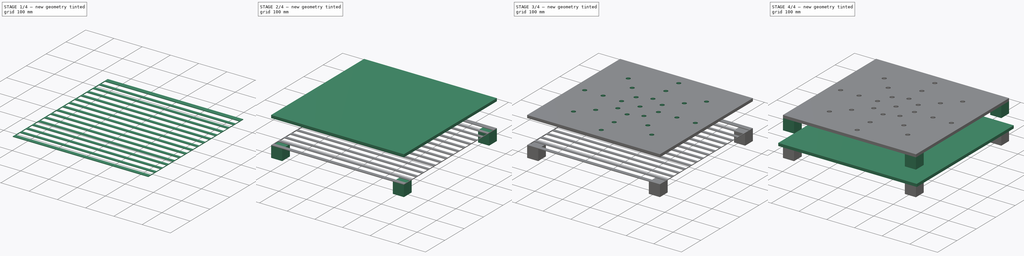
[diagram: build sequence overview — one tinted view per stage of 4, left to right]
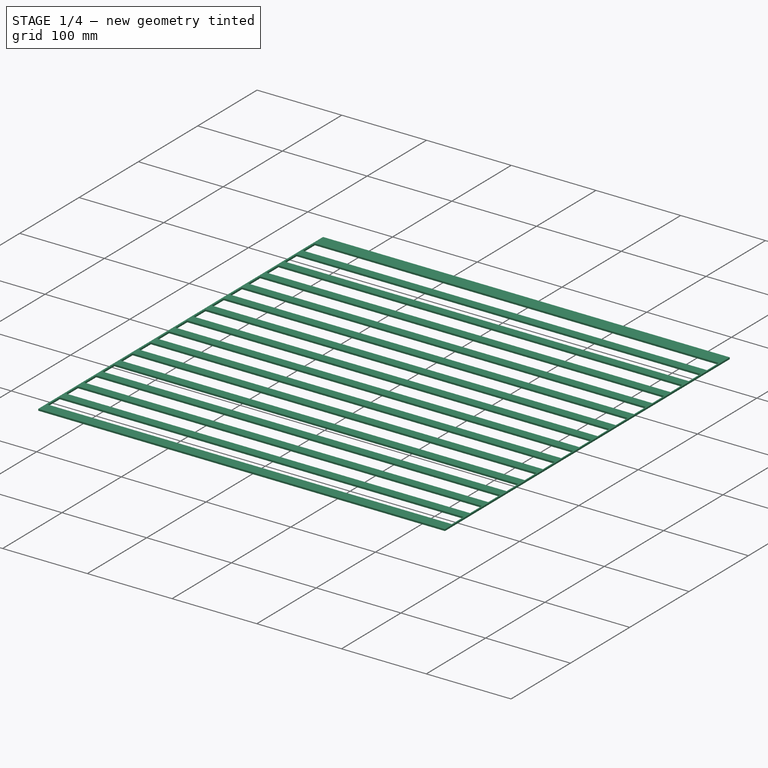
[diagram: stage 1 of 4 — iso view after this stage's code; geometry added in this stage tinted green]
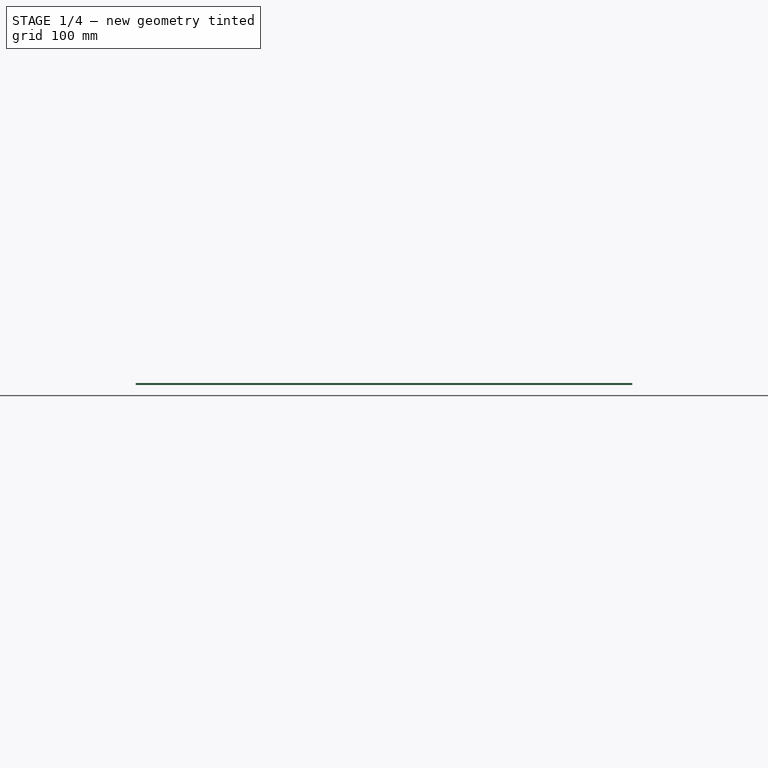
[diagram: stage 1 of 4 — front view after this stage's code; geometry added in this stage tinted green]
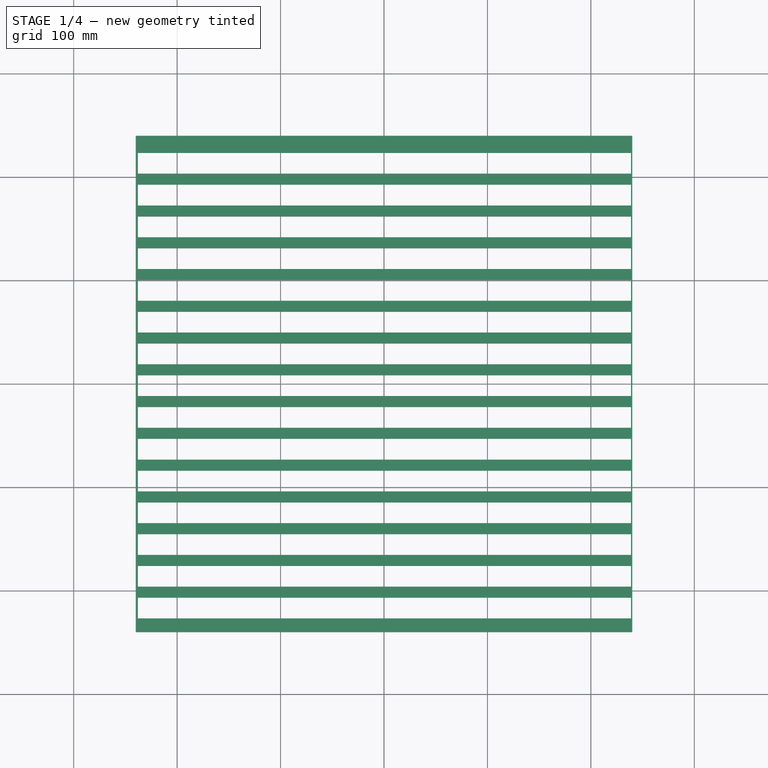
[diagram: stage 1 of 4 — top view after this stage's code; geometry added in this stage tinted green]
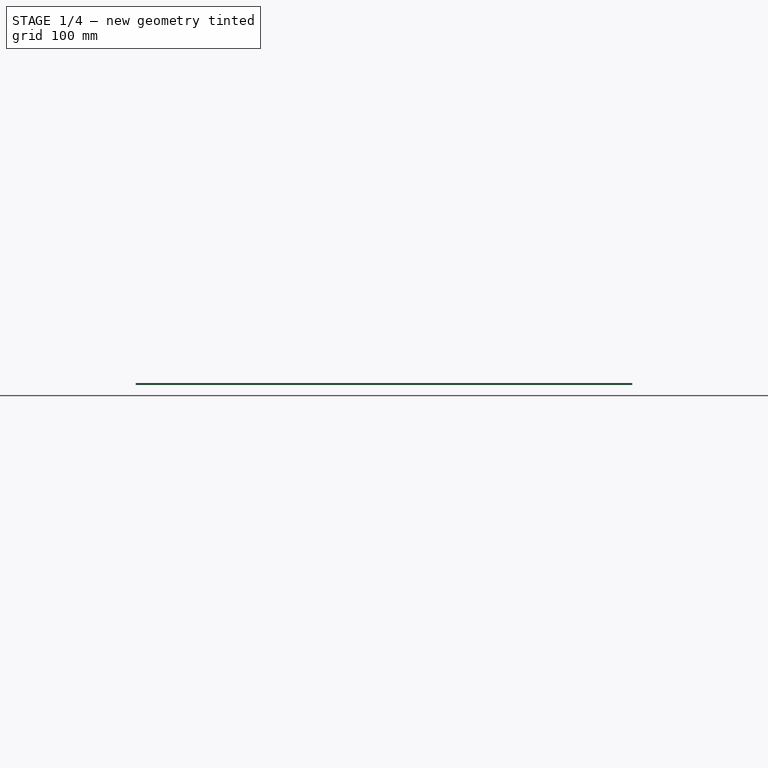
[diagram: stage 1 of 4 — right view after this stage's code; geometry added in this stage tinted green]
FCSTD DOCUMENT  (FreeCAD 0.18R16131 (Git))
Label: fumoir
License: All rights reserved
LicenseURL: http://en.wikipedia.org/wiki/All_rights_reserved
objects: Sketcher::SketchObject×9, PartDesign::Pad×6, PartDesign::PolarPattern×3, PartDesign::Body×3, PartDesign::Pocket×2, PartDesign::LinearPattern×2, PartDesign::MultiTransform×1, Part::Extrusion×1
note: 35 computed .brp shape members not serialized (recipe doc carries the construction recipe); baked Part::Feature solids carry a one-line shape summary decoded from their .brp

FEATURE [PartDesign::Body] Body002  label="Fermeture"
  Group = -> [Sketch003,Pad001,Sketch004,Pad002]
  Origin = -> Origin002
  Placement = pos=(0,0,500) rot=(0,0,1;0rad)
  Tip = -> Pad002
FEATURE [Sketcher::SketchObject] Sketch005
  MapMode = 5
  Support = -> [XY_Plane003]
  sketch-geometry (5):
    g0: LineSegment StartX=-240 StartY=240 StartZ=0 EndX=240 EndY=240 EndZ=0
    g1: LineSegment StartX=240 StartY=240 StartZ=0 EndX=240 EndY=-240 EndZ=0
    g2: LineSegment StartX=240 StartY=-240 StartZ=0 EndX=-240 EndY=-240 EndZ=0
    g3: LineSegment StartX=-240 StartY=-240 StartZ=0 EndX=-240 EndY=240 EndZ=0
    g4: LineSegment StartX=-212.012 StartY=-240 StartZ=0 EndX=-138.837 EndY=-240 EndZ=0
  constraints (12):
    c: Coincident(g0,g1)
    c: Coincident(g1,g2)
    c: Coincident(g2,g3)
    c: Coincident(g3,g0)
    c: Horizontal(g2)
    c: Vertical(g1)
    c: DistanceX(g0,g0) = 480
    c: DistanceY(g3,g3) = 480
    c: Symmetric(g0,g0,g-2)
    c: Symmetric(g0,g2,g-1)
    c: Horizontal(g4)
    c: PointOnObject(g4,g2)
FEATURE [PartDesign::Pad] Pad003
  Length = 2
  Length2 = 100
  Profile = -> Sketch005
  Type = 0
FEATURE [Sketcher::SketchObject] Sketch006
  ExternalGeometry = -> [Sketch005]
  MapMode = 5
  Support = -> [XY_Plane003]
  sketch-geometry (4):
    g0: LineSegment StartX=-237.974 StartY=223.337 StartZ=0 EndX=238.742 EndY=223.337 EndZ=0
    g1: LineSegment StartX=238.742 StartY=223.337 StartZ=0 EndX=238.742 EndY=203.337 EndZ=0
    g2: LineSegment StartX=238.742 StartY=203.337 StartZ=0 EndX=-237.974 EndY=203.337 EndZ=0
    g3: LineSegment StartX=-237.974 StartY=203.337 StartZ=0 EndX=-237.974 EndY=223.337 EndZ=0
  constraints (9):
    c: Coincident(g0,g1)
    c: Coincident(g1,g2)
    c: Coincident(g2,g3)
    c: Coincident(g3,g0)
    c: Horizontal(g0)
    c: Horizontal(g2)
    c: Vertical(g1)
    c: Vertical(g3)
    c: DistanceY(g1,g1) = 20
FEATURE [PartDesign::Pocket] Pocket002
  BaseFeature = -> Pad003
  Length = 5
  Length2 = 100
  Profile = -> Sketch006
  Reversed = true
  Type = 1
FEATURE [PartDesign::LinearPattern] LinearPattern001
  BaseFeature = -> Pocket002
  Direction = -> Sketch006 [V_Axis]
  Length = 430
  Occurrences = 15
  Originals = -> [Pocket002]
  Reversed = true
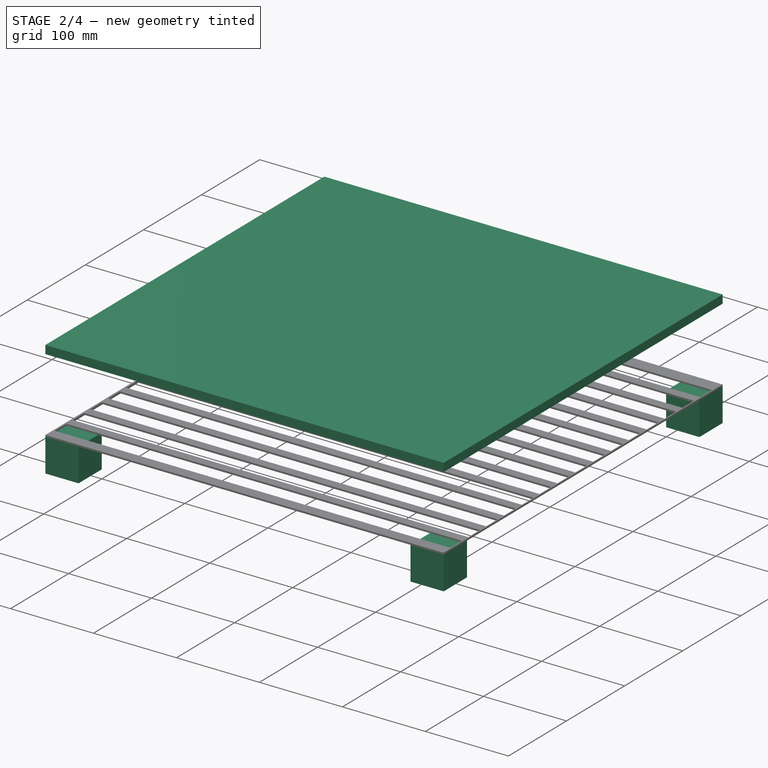
[diagram: stage 2 of 4 — iso view after this stage's code; geometry added in this stage tinted green]
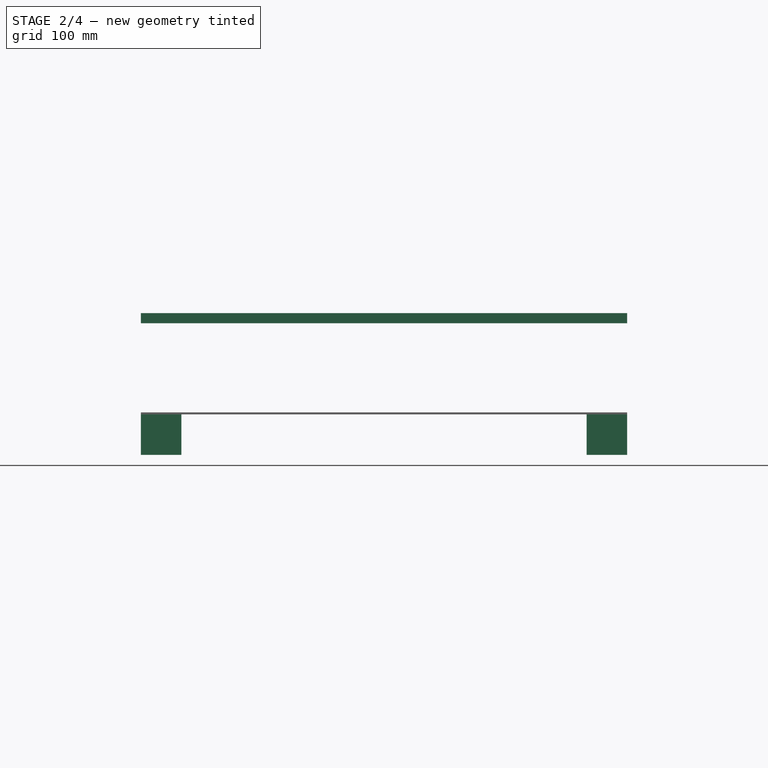
[diagram: stage 2 of 4 — front view after this stage's code; geometry added in this stage tinted green]
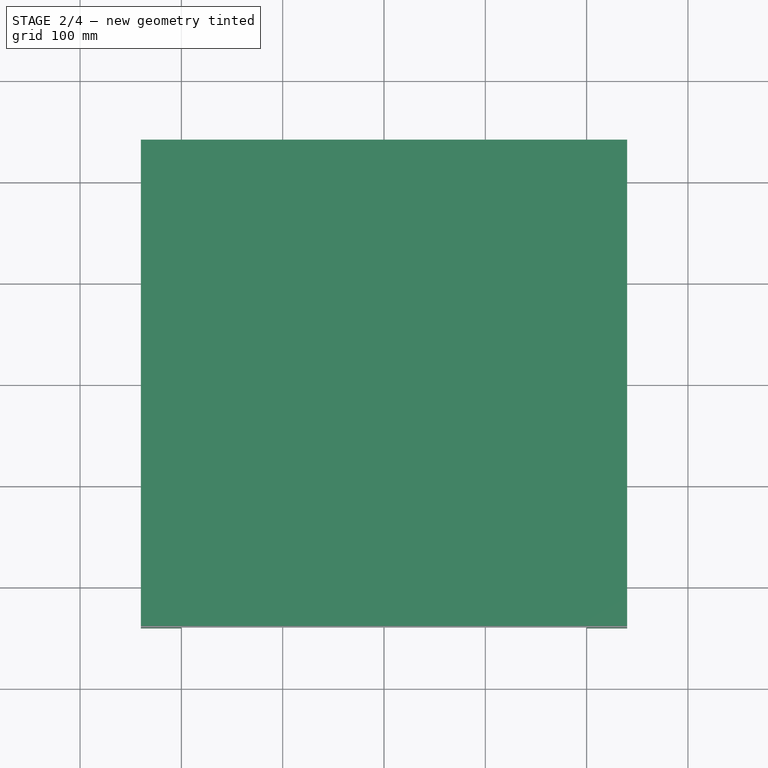
[diagram: stage 2 of 4 — top view after this stage's code; geometry added in this stage tinted green]
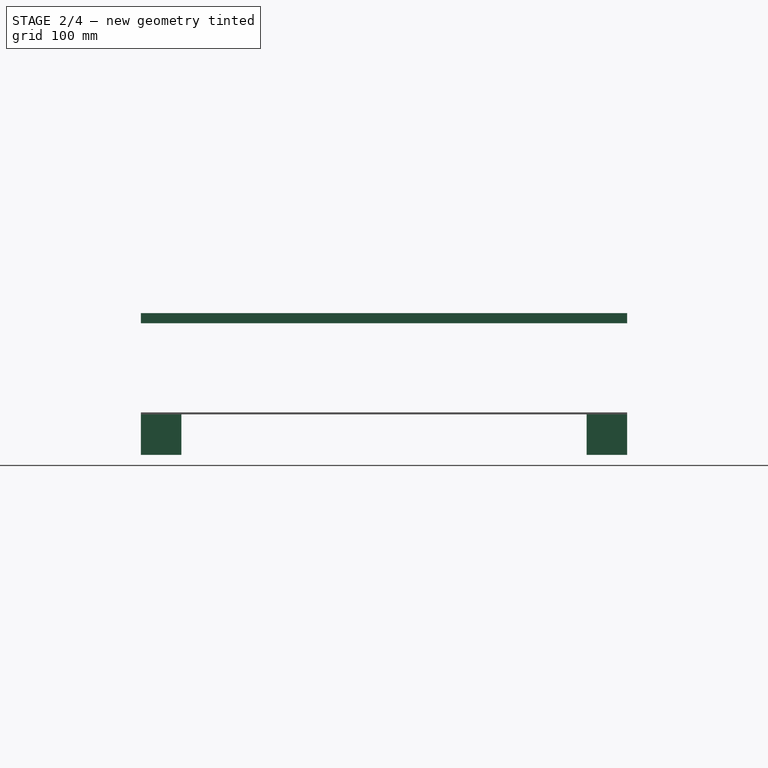
[diagram: stage 2 of 4 — right view after this stage's code; geometry added in this stage tinted green]
FEATURE [Sketcher::SketchObject] Sketch  label="cotes"
  MapMode = 5
  Support = -> [XY_Plane]
  sketch-geometry (16):
    g0: LineSegment StartX=-250 StartY=250 StartZ=0 EndX=-240 EndY=250 EndZ=0
    g1: LineSegment StartX=-240 StartY=250 StartZ=0 EndX=-240 EndY=-250 EndZ=0
    g2: LineSegment StartX=-240 StartY=-250 StartZ=0 EndX=-250 EndY=-250 EndZ=0
    g3: LineSegment StartX=-250 StartY=-250 StartZ=0 EndX=-250 EndY=250 EndZ=0
    g4: LineSegment StartX=-240 StartY=250 StartZ=0 EndX=250 EndY=250 EndZ=0
    g5: LineSegment StartX=250 StartY=250 StartZ=0 EndX=250 EndY=240 EndZ=0
    g6: LineSegment StartX=240 StartY=240 StartZ=0 EndX=-240 EndY=240 EndZ=0
    g7: LineSegment StartX=-240 StartY=240 StartZ=0 EndX=-240 EndY=250 EndZ=0
    g8: LineSegment StartX=250 StartY=250 StartZ=0 EndX=234.86 EndY=250 EndZ=0
    g9: LineSegment StartX=240 StartY=250 StartZ=0 EndX=240 EndY=-250 EndZ=0
    g10: LineSegment StartX=240 StartY=-250 StartZ=0 EndX=250 EndY=-250 EndZ=0
    g11: LineSegment StartX=250 StartY=-250 StartZ=0 EndX=250 EndY=250 EndZ=0
    g12: LineSegment StartX=-240 StartY=-250 StartZ=0 EndX=250 EndY=-250 EndZ=0
    g13: LineSegment StartX=250 StartY=-250 StartZ=0 EndX=250 EndY=-239.872 EndZ=0
    g14: LineSegment StartX=240 StartY=-240 StartZ=0 EndX=-240 EndY=-240 EndZ=0
    g15: LineSegment StartX=-240 StartY=-240 StartZ=0 EndX=-240 EndY=-250 EndZ=0
  constraints (41):
    c: Coincident(g0,g1)
    c: Coincident(g1,g2)
    c: Coincident(g2,g3)
    c: Coincident(g3,g0)
    c: Horizontal(g0)
    c: Horizontal(g2)
    c: Vertical(g1)
    c: Vertical(g3)
    c: Coincident(g4,g5)
    c: Coincident(g6,g7)
    c: Coincident(g7,g4)
    c: Horizontal(g6)
    c: Vertical(g5)
    c: Vertical(g7)
    c: Coincident(g4,g0)
    c: Coincident(g9,g10)
    c: Coincident(g10,g11)
    c: Coincident(g11,g8)
    c: Horizontal(g10)
    c: Vertical(g9)
    c: Coincident(g4,g8)
    c: Coincident(g12,g13)
    c: Coincident(g14,g15)
    c: Coincident(g15,g12)
    c: Horizontal(g12)
    c: Horizontal(g14)
    c: Vertical(g13)
    c: Vertical(g15)
    c: Coincident(g12,g1)
    c: DistanceY(g3,g3) = 500
    c: Coincident(g10,g12)
    c: DistanceX(g2,g2) = 10
    c: Equal(g10,g2)
    c: DistanceY(g1,g14) = 10
    c: Symmetric(g4,g10,g-1)
    c: PointOnObject(g14,g9)
    c: PointOnObject(g9,g4)
    c: PointOnObject(g6,g9)
    c: DistanceX(g0,g4) = 500
    c: Symmetric(g0,g4,g-2)
    c: DistanceY(g6,g9) = 10
FEATURE [Sketcher::SketchObject] Sketch001  label="dessous"
  AttachmentOffset = pos=(0,0,100) rot=(0,0,1;0rad)
  MapMode = 5
  Placement = pos=(0,0,100) rot=(0,0,1;0rad)
  Support = -> [XY_Plane]
  sketch-geometry (4):
    g0: LineSegment StartX=-240 StartY=240 StartZ=0 EndX=240 EndY=240 EndZ=0
    g1: LineSegment StartX=240 StartY=240 StartZ=0 EndX=240 EndY=-240 EndZ=0
    g2: LineSegment StartX=240 StartY=-240 StartZ=0 EndX=-240 EndY=-240 EndZ=0
    g3: LineSegment StartX=-240 StartY=-240 StartZ=0 EndX=-240 EndY=240 EndZ=0
  constraints (10):
    c: Coincident(g0,g1)
    c: Coincident(g1,g2)
    c: Coincident(g2,g3)
    c: Coincident(g3,g0)
    c: Horizontal(g2)
    c: Vertical(g1)
    c: DistanceX(g0,g0) = 480
    c: DistanceY(g3,g3) = 480
    c: Symmetric(g0,g0,g-2)
    c: Symmetric(g0,g2,g-1)
FEATURE [PartDesign::Pad] Pad
  Length = 10
  Length2 = 100
  Profile = -> Sketch001
  Reversed = true
  Type = 0
FEATURE [PartDesign::Body] Body  label="Separateur"
  Group = -> [Sketch,Sketch001,Pad,Sketch002,Pocket,MultiTransform,LinearPattern,PolarPattern,Sketch008,Pad004,PolarPattern001]
  Origin = -> Origin
  Tip = -> PolarPattern001
FEATURE [Sketcher::SketchObject] Sketch009
  ExternalGeometry = -> [Sketch005]
  MapMode = 5
  Support = -> [XY_Plane003]
  sketch-geometry (4):
    g0: LineSegment StartX=-240 StartY=240 StartZ=0 EndX=-200 EndY=240 EndZ=0
    g1: LineSegment StartX=-200 StartY=240 StartZ=0 EndX=-200 EndY=200 EndZ=0
    g2: LineSegment StartX=-200 StartY=200 StartZ=0 EndX=-240 EndY=200 EndZ=0
    g3: LineSegment StartX=-240 StartY=200 StartZ=0 EndX=-240 EndY=240 EndZ=0
  constraints (11):
    c: Coincident(g0,g1)
    c: Coincident(g1,g2)
    c: Coincident(g2,g3)
    c: Coincident(g3,g0)
    c: Horizontal(g0)
    c: Horizontal(g2)
    c: Vertical(g1)
    c: Vertical(g3)
    c: Coincident(g0,g-4)
    c: DistanceY(g1,g1) = 40
    c: DistanceX(g2,g2) = 40
FEATURE [PartDesign::Pad] Pad005
  BaseFeature = -> LinearPattern001
  Length = 40
  Length2 = 100
  Profile = -> Sketch009
  Reversed = true
  Type = 0
FEATURE [PartDesign::PolarPattern] PolarPattern002
  Angle = 360
  Axis = -> Sketch009 [N_Axis]
  BaseFeature = -> Pad005
  Occurrences = 4
  Originals = -> [Pad005]
FEATURE [PartDesign::Body] Body003  label="Grille"
  Group = -> [Sketch005,Pad003,Sketch006,Pocket002,LinearPattern001,Sketch009,Pad005,PolarPattern002]
  Origin = -> Origin003
  Placement = pos=(0,0,400) rot=(0,0,1;0rad)
  Tip = -> PolarPattern002
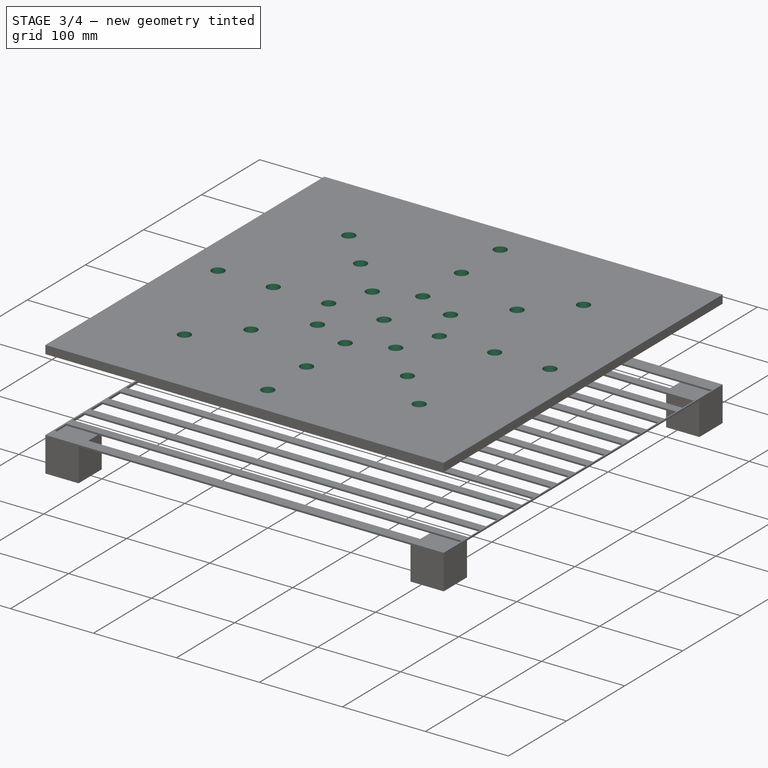
[diagram: stage 3 of 4 — iso view after this stage's code; geometry added in this stage tinted green]
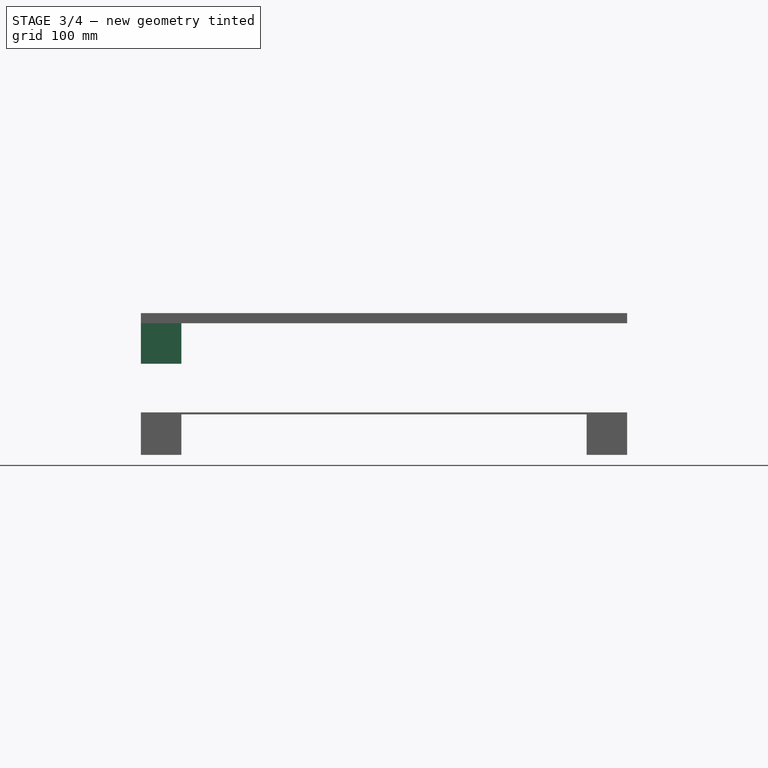
[diagram: stage 3 of 4 — front view after this stage's code; geometry added in this stage tinted green]
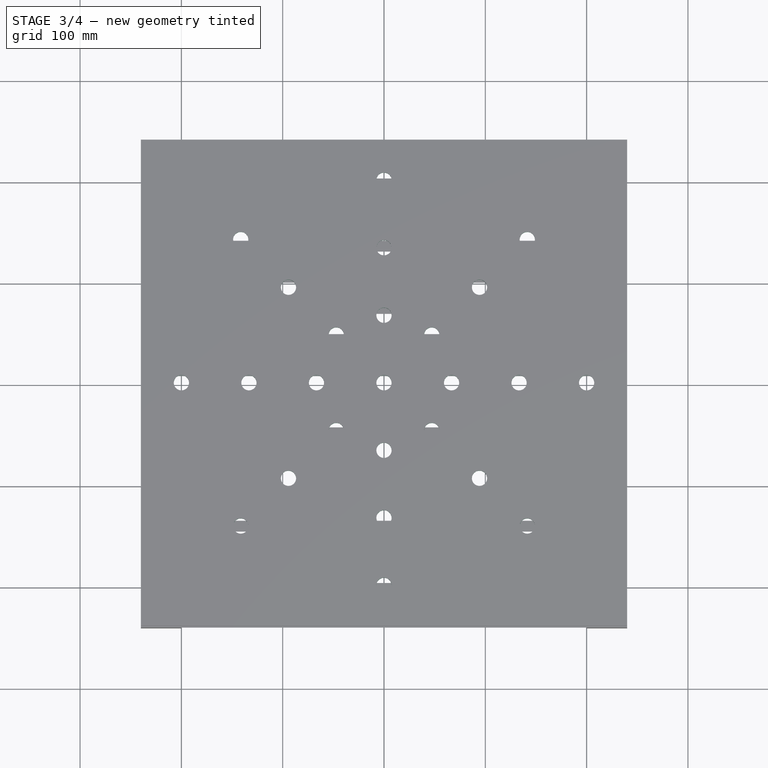
[diagram: stage 3 of 4 — top view after this stage's code; geometry added in this stage tinted green]
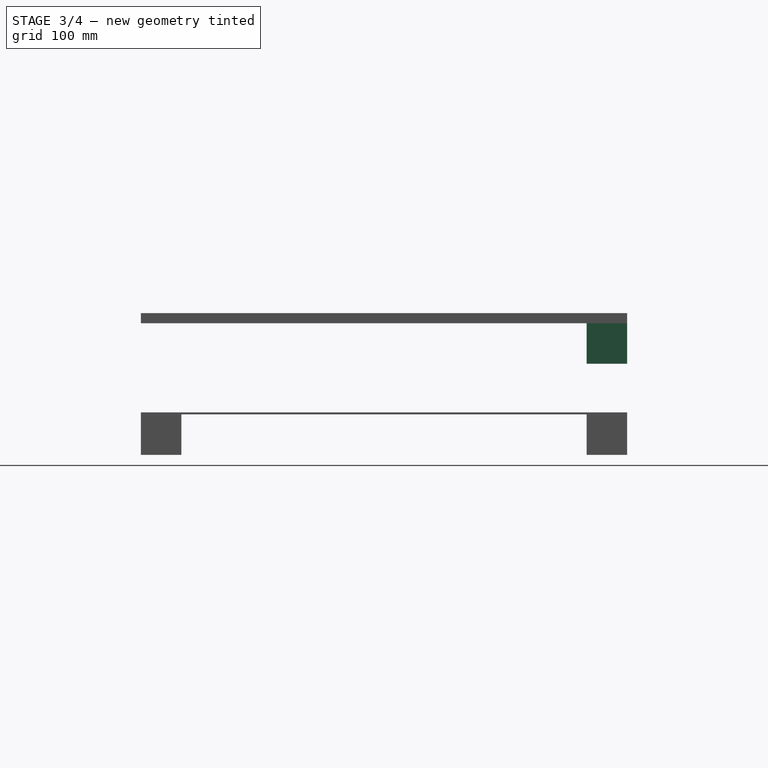
[diagram: stage 3 of 4 — right view after this stage's code; geometry added in this stage tinted green]
FEATURE [Sketcher::SketchObject] Sketch002  label="trou bas"
  AttachmentOffset = pos=(0,0,100) rot=(0,0,1;0rad)
  MapMode = 5
  Placement = pos=(0,0,100) rot=(0,0,1;0rad)
  Support = -> [XY_Plane]
  sketch-geometry (1):
    g0: Circle CenterX=0 CenterY=0 CenterZ=0 NormalX=0 NormalY=0 NormalZ=1 AngleXU=0 Radius=7.5
  constraints (2):
    c: Coincident(g0,g-1)
    c: Diameter(g0) = 15
FEATURE [PartDesign::Pocket] Pocket
  BaseFeature = -> Pad
  Length = 5
  Length2 = 100
  Profile = -> Sketch002
  Type = 1
FEATURE [PartDesign::LinearPattern] LinearPattern
  Direction = -> Sketch002 [H_Axis]
  Length = 200
  Occurrences = 4
FEATURE [PartDesign::PolarPattern] PolarPattern
  Angle = 360
  Axis = -> Sketch002 [N_Axis]
  Occurrences = 8
FEATURE [PartDesign::MultiTransform] MultiTransform
  BaseFeature = -> Pocket
  Originals = -> [Pocket]
  Transformations = -> [LinearPattern,PolarPattern]
FEATURE [Sketcher::SketchObject] Sketch008
  AttachmentOffset = pos=(0,0,50) rot=(0,0,1;0rad)
  MapMode = 5
  Placement = pos=(0,0,50) rot=(0,0,1;0rad)
  Support = -> [XY_Plane]
  sketch-geometry (4):
    g0: LineSegment StartX=-240 StartY=240 StartZ=0 EndX=-200 EndY=240 EndZ=0
    g1: LineSegment StartX=-200 StartY=240 StartZ=0 EndX=-200 EndY=200 EndZ=0
    g2: LineSegment StartX=-200 StartY=200 StartZ=0 EndX=-240 EndY=200 EndZ=0
    g3: LineSegment StartX=-240 StartY=200 StartZ=0 EndX=-240 EndY=240 EndZ=0
  constraints (10):
    c: Coincident(g0,g1)
    c: Coincident(g1,g2)
    c: Coincident(g2,g3)
    c: Coincident(g3,g0)
    c: Horizontal(g0)
    c: Horizontal(g2)
    c: Vertical(g1)
    c: Vertical(g3)
    c: DistanceX(g2,g2) = 40
    c: DistanceY(g1,g1) = 40
FEATURE [PartDesign::Pad] Pad004  label="butee separateur"
  BaseFeature = -> MultiTransform
  Length = 40
  Length2 = 100
  Profile = -> Sketch008
  Type = 0
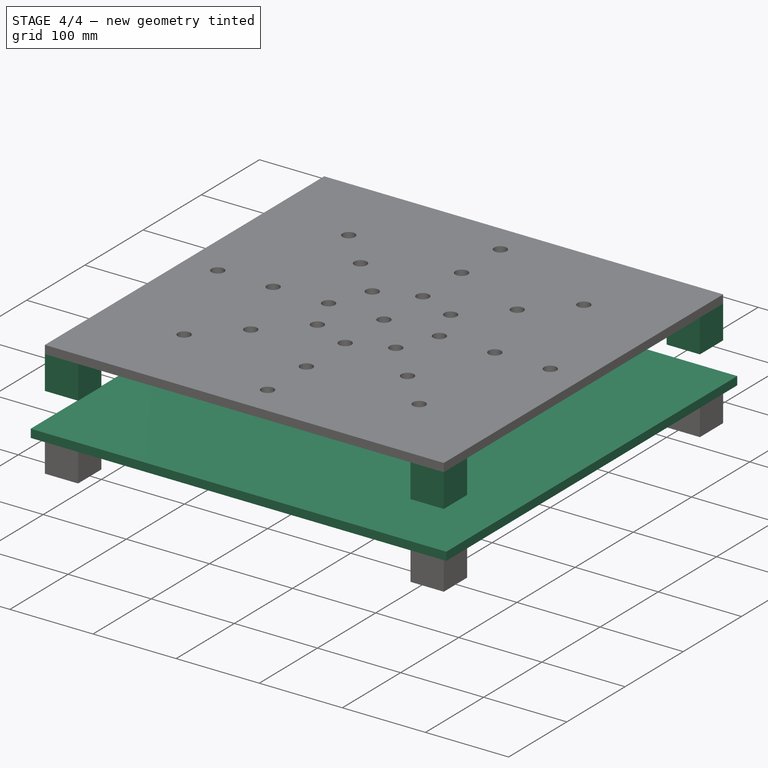
[diagram: stage 4 of 4 — iso view after this stage's code; geometry added in this stage tinted green]
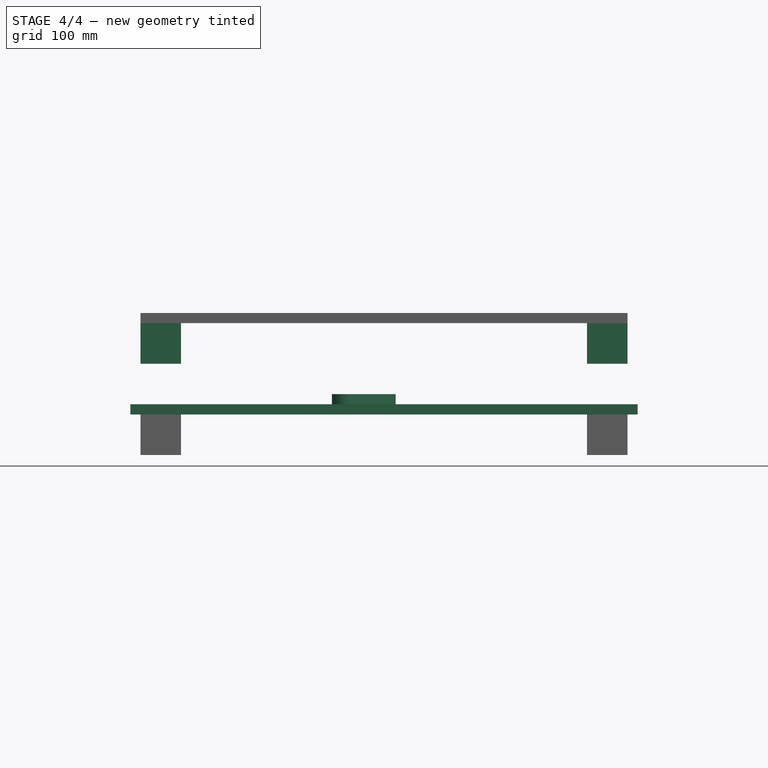
[diagram: stage 4 of 4 — front view after this stage's code; geometry added in this stage tinted green]
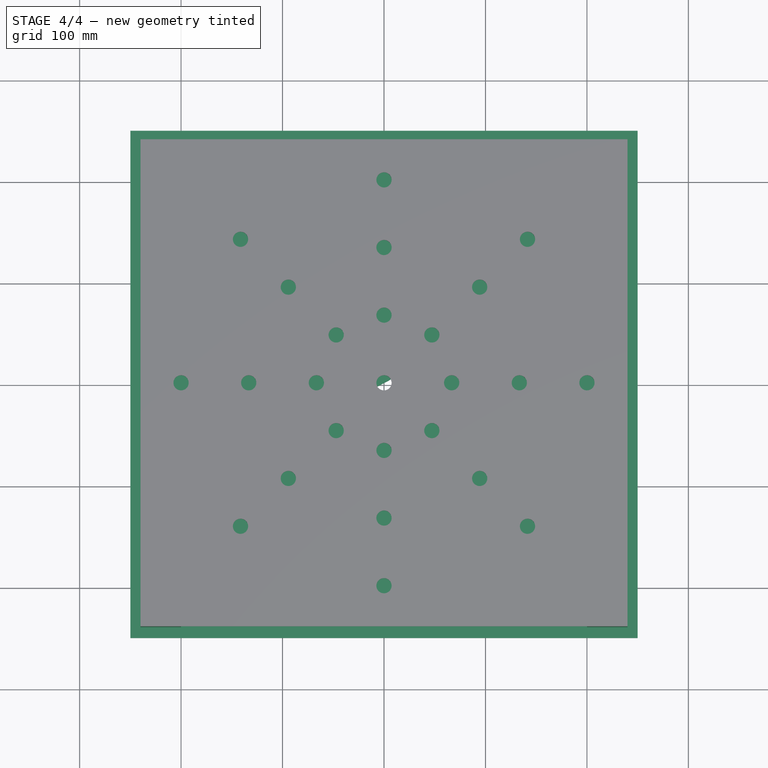
[diagram: stage 4 of 4 — top view after this stage's code; geometry added in this stage tinted green]
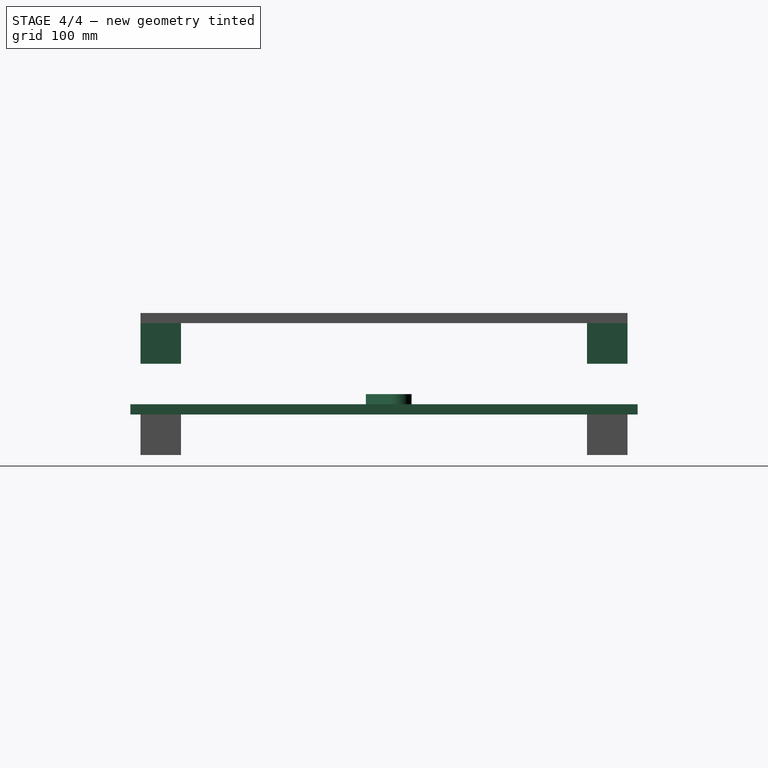
[diagram: stage 4 of 4 — right view after this stage's code; geometry added in this stage tinted green]
FEATURE [Part::Extrusion] Extrude003  label="Chassis"
  Base = -> Sketch
  Dir = (0,0,1)
  DirMode = 2
  FaceMakerClass = Part::FaceMakerBullseye
  LengthFwd = 500
  LengthRev = 0
  Solid = false
  Symmetric = false
FEATURE [Sketcher::SketchObject] Sketch003
  MapMode = 5
  Support = -> [XY_Plane002]
  sketch-geometry (5):
    g0: LineSegment StartX=-250 StartY=250 StartZ=0 EndX=250 EndY=250 EndZ=0
    g1: LineSegment StartX=250 StartY=250 StartZ=0 EndX=250 EndY=-250 EndZ=0
    g2: LineSegment StartX=250 StartY=-250 StartZ=0 EndX=-250 EndY=-250 EndZ=0
    g3: LineSegment StartX=-250 StartY=-250 StartZ=0 EndX=-250 EndY=250 EndZ=0
    g4: Circle CenterX=0 CenterY=0 CenterZ=0 NormalX=0 NormalY=0 NormalZ=1 AngleXU=0 Radius=10
  constraints (12):
    c: Coincident(g0,g1)
    c: Coincident(g1,g2)
    c: Coincident(g2,g3)
    c: Coincident(g3,g0)
    c: Horizontal(g2)
    c: Vertical(g1)
    c: DistanceX(g0,g0) = 500
    c: DistanceY(g3,g3) = 500
    c: Symmetric(g0,g0,g-2)
    c: Symmetric(g0,g2,g-1)
    c: Coincident(g4,g-1)
    c: Diameter(g4) = 20
FEATURE [PartDesign::Pad] Pad001
  Length = 10
  Length2 = 100
  Profile = -> Sketch003
  Type = 0
FEATURE [Sketcher::SketchObject] Sketch004
  AttachmentOffset = pos=(-10,10,10) rot=(0,0,1;0.488692rad)
  MapMode = 5
  Placement = pos=(-10,10,10) rot=(0,0,1;0.488692rad)
  Support = -> [XY_Plane002]
  sketch-geometry (5):
    g0: ArcOfCircle CenterX=-32.6457 CenterY=0 CenterZ=0 NormalX=0 NormalY=0 NormalZ=1 AngleXU=0 Radius=12.5 StartAngle=1.5708 EndAngle=4.71239
    g1: ArcOfCircle CenterX=10.1549 CenterY=8e-16 CenterZ=0 NormalX=0 NormalY=0 NormalZ=1 AngleXU=0 Radius=12.5 StartAngle=4.71239 EndAngle=7.85398
    g2: LineSegment StartX=-32.6457 StartY=-12.5 StartZ=0 EndX=10.1549 EndY=-12.5 EndZ=0
    g3: LineSegment StartX=-32.6457 StartY=12.5 StartZ=0 EndX=10.1549 EndY=12.5 EndZ=0
    g4: Circle CenterX=-32.6457 CenterY=0 CenterZ=0 NormalX=0 NormalY=0 NormalZ=1 AngleXU=0 Radius=2.5
  constraints (10):
    c: Tangent(g0,g3) = 1.5708
    c: Tangent(g0,g2) = -1.5708
    c: Tangent(g2,g1) = -1.5708
    c: Tangent(g3,g1) = 1.5708
    c: Horizontal(g2)
    c: Equal(g0,g1)
    c: PointOnObject(g0,g-1)
    c: DistanceY(g0,g0) = 25
    c: Coincident(g4,g0)
    c: Diameter(g4) = 5
FEATURE [PartDesign::Pad] Pad002
  BaseFeature = -> Pad001
  Length = 10
  Length2 = 100
  Profile = -> Sketch004
  Type = 0
FEATURE [PartDesign::PolarPattern] PolarPattern001
  Angle = 360
  Axis = -> Sketch008 [N_Axis]
  BaseFeature = -> Pad004
  Occurrences = 4
  Originals = -> [Pad004]
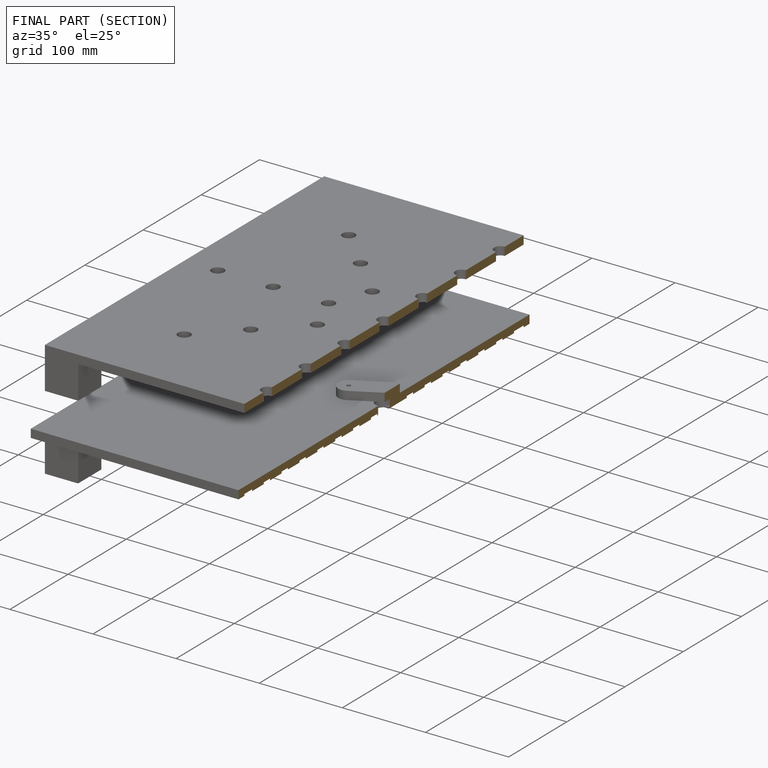
[diagram: finished part — half-section view (interior)]
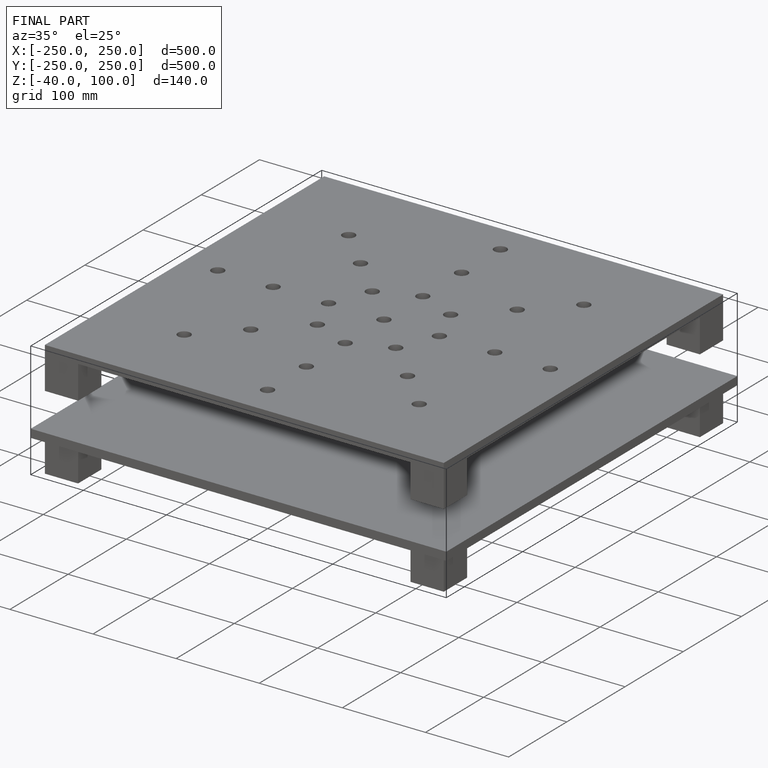
[diagram: finished part — iso view with bounding-box wireframe]
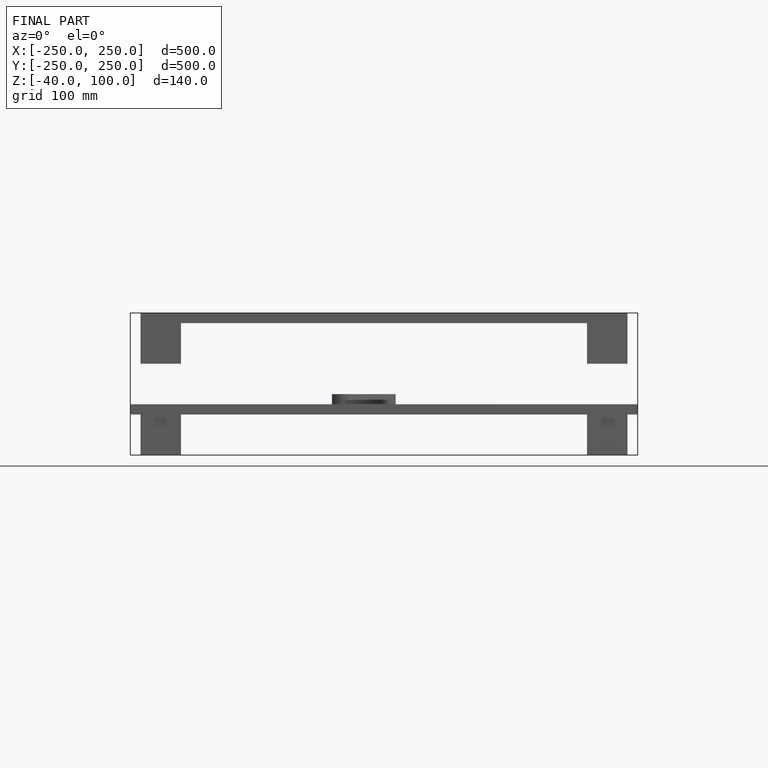
[diagram: finished part — front view with bounding-box wireframe]
